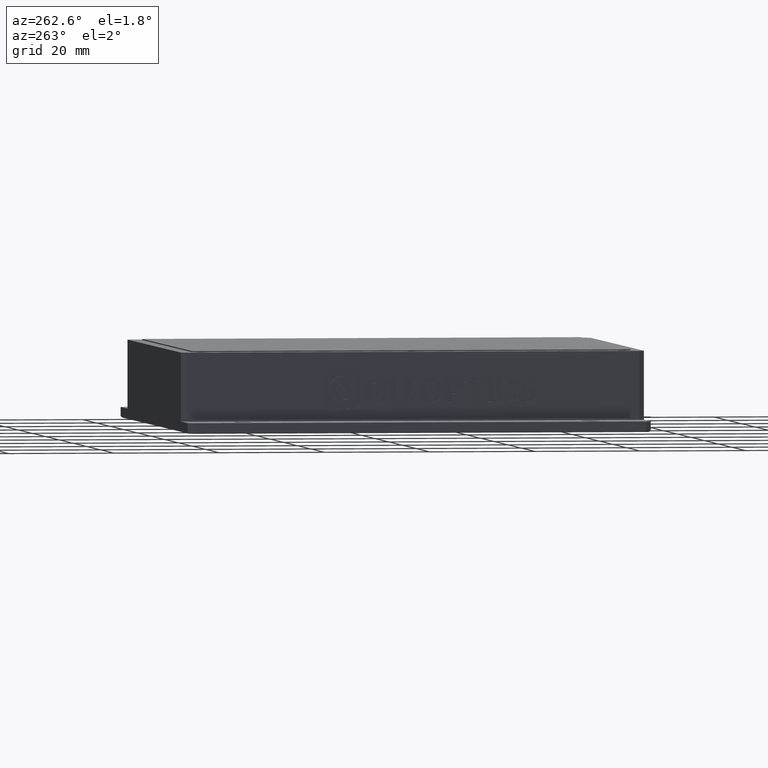
[diagram: clean part render]
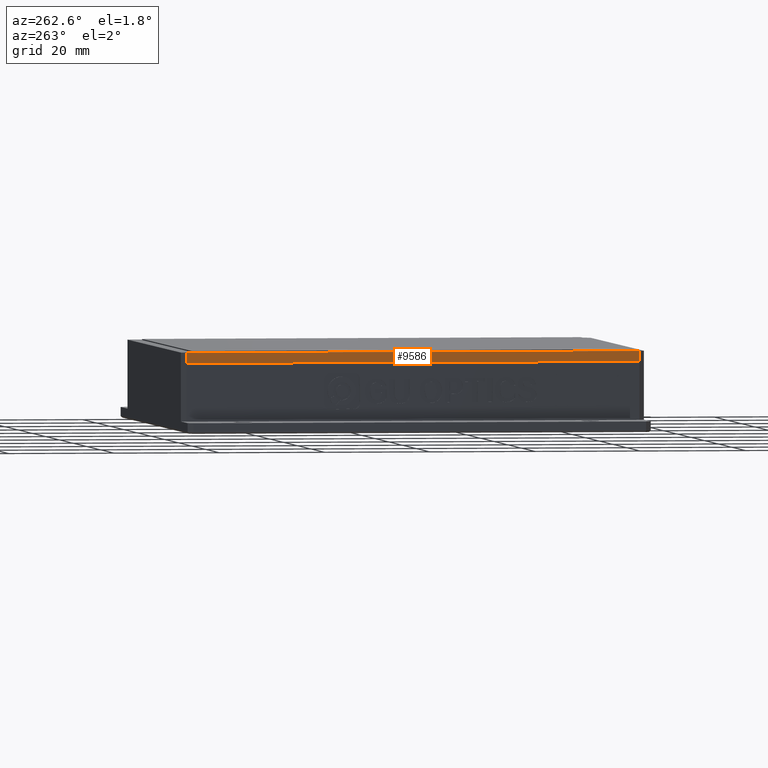
[diagram: same view with one face highlighted and labeled with its STEP entity id]
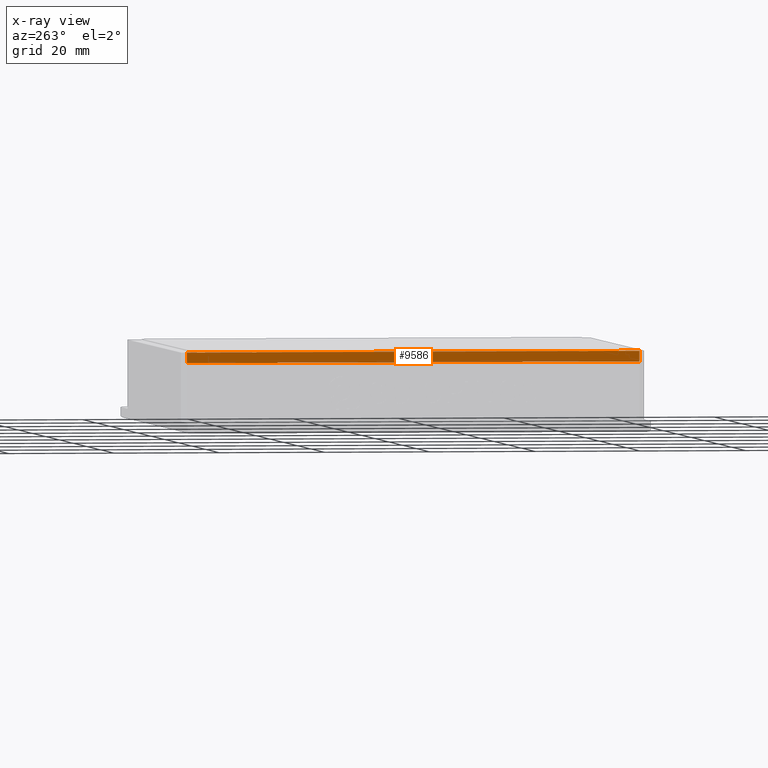
[diagram: x-ray of the same camera — body ghosted, the highlighted face saturated]
A machine part, auxiliary view. The second image highlights one B-rep face of the part: STEP entity #9586.
The next image is the same camera in x-ray: the body ghosted, the highlighted face saturated — about 0% of this face is hidden behind the body in this view.
In plain terms, the highlighted planar face has unit normal (1, -0, -0).
Its self-contained STEP definition (entity closure, byte-faithful):
#147 = DIRECTION ( 'NONE',  ( 1.000000000000000000, -7.594934782094821800E-016, -0.0000000000000000000 ) ) ;
#534 = CARTESIAN_POINT ( 'NONE',  ( -22.94768995799926300, 39.79992363497525800, 12.99999999999545100 ) ) ;
#683 = VERTEX_POINT ( 'NONE', #7286 ) ;
#1155 = CARTESIAN_POINT ( 'NONE',  ( -22.94768995799933400, -47.20007636502474900, 10.99999999999545100 ) ) ;
#1463 = PLANE ( 'NONE',  #5085 ) ;
#2663 = LINE ( 'NONE', #14572, #16790 ) ;
#3095 = LINE ( 'NONE', #7116, #17203 ) ;
#3965 = VECTOR ( 'NONE', #15692, 1000.000000000000000 ) ;
#4056 = VERTEX_POINT ( 'NONE', #12567 ) ;
#4332 = ORIENTED_EDGE ( 'NONE', *, *, #13260, .F. ) ;
#5085 = AXIS2_PLACEMENT_3D ( 'NONE', #8485, #147, #9845 ) ;
#6102 = ORIENTED_EDGE ( 'NONE', *, *, #10206, .F. ) ;
#6889 = FACE_OUTER_BOUND ( 'NONE', #9438, .T. ) ;
#7116 = CARTESIAN_POINT ( 'NONE',  ( -22.94768995799933400, -47.20007636502472800, 10.99999999999545100 ) ) ;
#7226 = DIRECTION ( 'NONE',  ( 0.0000000000000000000, 0.0000000000000000000, -1.000000000000000000 ) ) ;
#7286 = CARTESIAN_POINT ( 'NONE',  ( -22.94768995799931900, -47.20007636502475600, 12.99999999999545100 ) ) ;
#7662 = ORIENTED_EDGE ( 'NONE', *, *, #12875, .F. ) ;
#8007 = EDGE_CURVE ( 'NONE', #16130, #4056, #11248, .T. ) ;
#8485 = CARTESIAN_POINT ( 'NONE',  ( -22.94768995799933400, -48.20007636502474200, 10.99999999999545100 ) ) ;
#8866 = DIRECTION ( 'NONE',  ( -4.440892098500626200E-016, -1.000000000000000000, -0.0000000000000000000 ) ) ;
#8969 = CARTESIAN_POINT ( 'NONE',  ( -22.94768995799926300, 38.79992363497524400, 10.99999999999545100 ) ) ;
#9088 = ORIENTED_EDGE ( 'NONE', *, *, #8007, .F. ) ;
#9438 = EDGE_LOOP ( 'NONE', ( #9088, #7662, #6102, #4332 ) ) ;
#9586 = ADVANCED_FACE ( 'NONE', ( #6889 ), #1463, .F. ) ;
#9845 = DIRECTION ( 'NONE',  ( -7.594934782094821800E-016, -1.000000000000000000, 0.0000000000000000000 ) ) ;
#10206 = EDGE_CURVE ( 'NONE', #683, #16980, #3095, .T. ) ;
#10533 = DIRECTION ( 'NONE',  ( 7.594934782094821800E-016, 1.000000000000000000, -0.0000000000000000000 ) ) ;
#11248 = LINE ( 'NONE', #8969, #3965 ) ;
#11454 = VECTOR ( 'NONE', #8866, 1000.000000000000000 ) ;
#11857 = LINE ( 'NONE', #534, #11454 ) ;
#12567 = CARTESIAN_POINT ( 'NONE',  ( -22.94768995799926300, 38.79992363497525800, 12.99999999999545100 ) ) ;
#12875 = EDGE_CURVE ( 'NONE', #16980, #16130, #2663, .T. ) ;
#13260 = EDGE_CURVE ( 'NONE', #4056, #683, #11857, .T. ) ;
#14572 = CARTESIAN_POINT ( 'NONE',  ( -22.94768995799933400, -48.20007636502474200, 10.99999999999545100 ) ) ;
#15692 = DIRECTION ( 'NONE',  ( -0.0000000000000000000, -0.0000000000000000000, 1.000000000000000000 ) ) ;
#16130 = VERTEX_POINT ( 'NONE', #17079 ) ;
#16790 = VECTOR ( 'NONE', #10533, 1000.000000000000000 ) ;
#16980 = VERTEX_POINT ( 'NONE', #1155 ) ;
#17079 = CARTESIAN_POINT ( 'NONE',  ( -22.94768995799926300, 38.79992363497525800, 10.99999999999545100 ) ) ;
#17203 = VECTOR ( 'NONE', #7226, 1000.000000000000000 ) ;